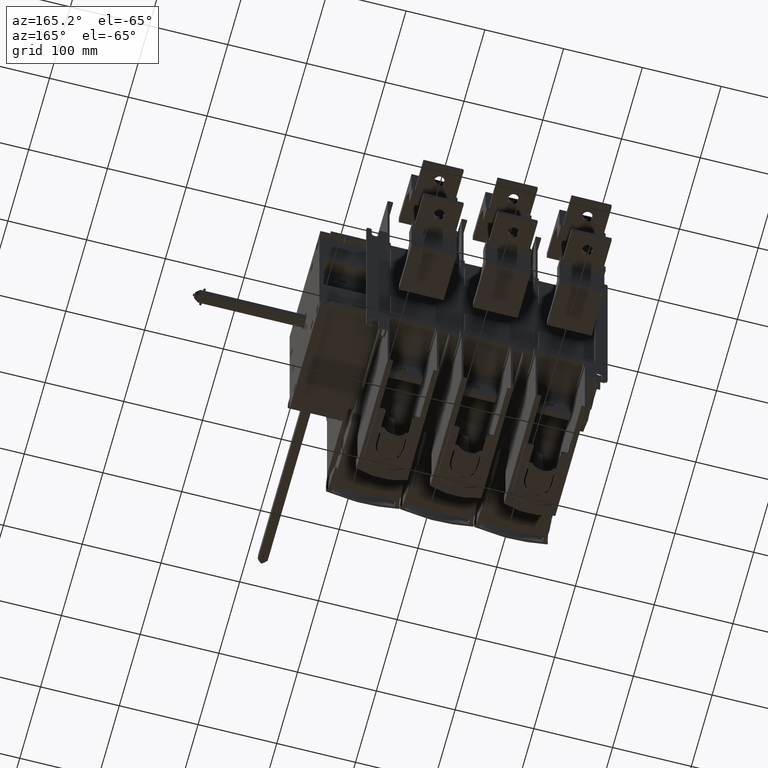
[diagram: clean part render]
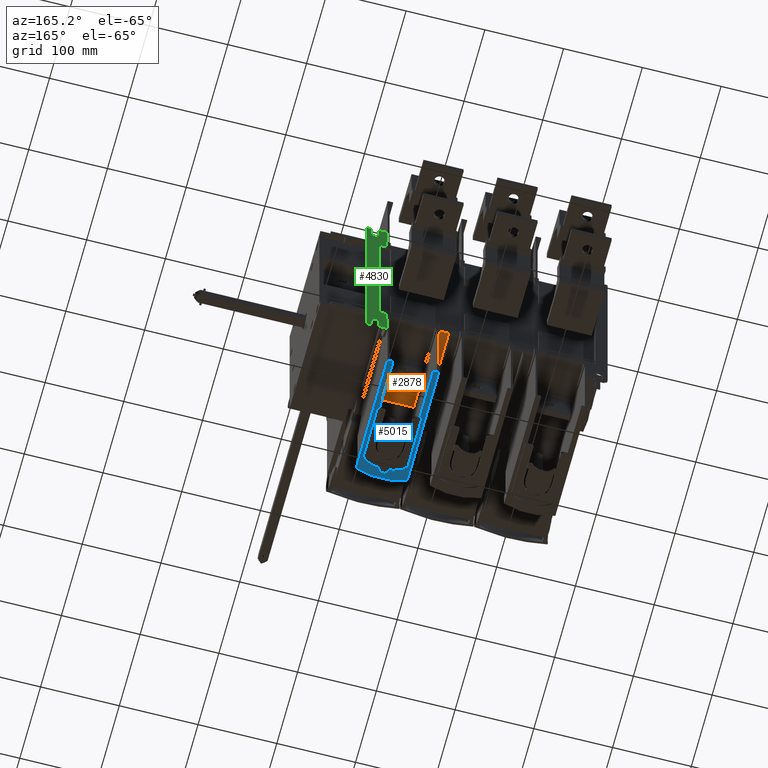
[diagram: same view with three faces highlighted in distinct colors, each labeled with its STEP entity id]
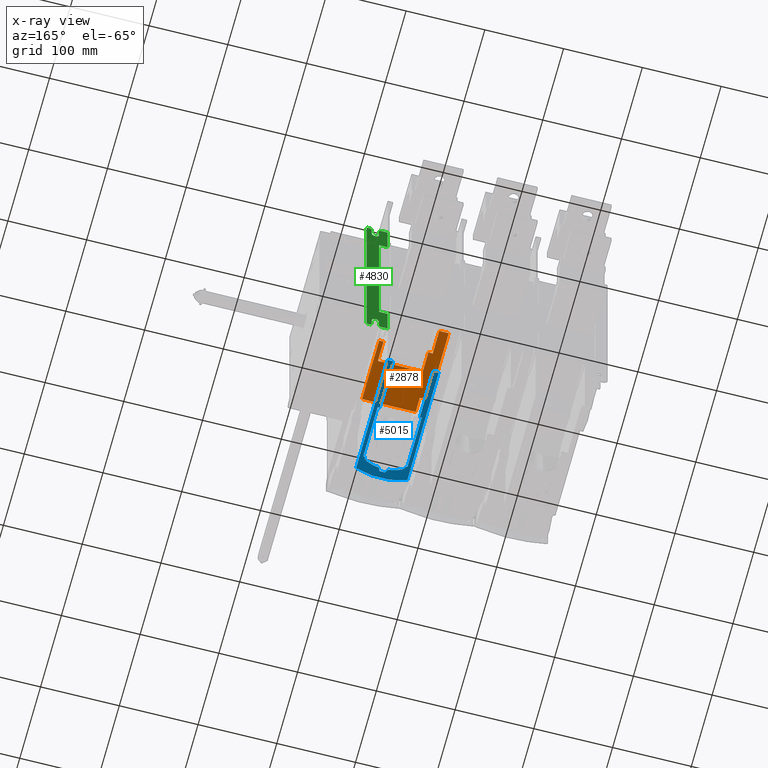
[diagram: x-ray of the same camera — body ghosted, the three highlighted faces saturated]
A machine part, auxiliary view with three faces highlighted in distinct colors.
The next image is the same camera in x-ray (body ghosted, the three faces saturated) — at least one of them is partly hidden behind the body in this view.
Their STEP definitions:

[orange] entity #2878 — the highlighted planar face has unit normal (0, 0, -1).
#2878=ADVANCED_FACE('',(#8355),#5737,.T.);
#5737=PLANE('',#59203);
#8355=FACE_OUTER_BOUND('',#11274,.T.);
#11274=EDGE_LOOP('',(#17446,#17447,#17448,#17449,#17450,#17451,#17452,#17453,
#17454,#17455,#17456,#17457));
#17446=ORIENTED_EDGE('',*,*,#37867,.F.);
#17447=ORIENTED_EDGE('',*,*,#37505,.T.);
#17448=ORIENTED_EDGE('',*,*,#37920,.F.);
#17449=ORIENTED_EDGE('',*,*,#37921,.F.);
#17450=ORIENTED_EDGE('',*,*,#37922,.T.);
#17451=ORIENTED_EDGE('',*,*,#37923,.F.);
#17452=ORIENTED_EDGE('',*,*,#37924,.F.);
#17453=ORIENTED_EDGE('',*,*,#37925,.T.);
#17454=ORIENTED_EDGE('',*,*,#37926,.T.);
#17455=ORIENTED_EDGE('',*,*,#37927,.F.);
#17456=ORIENTED_EDGE('',*,*,#37928,.T.);
#17457=ORIENTED_EDGE('',*,*,#37929,.T.);
#31540=VERTEX_POINT('',#85331);
#31547=VERTEX_POINT('',#85346);
#31549=VERTEX_POINT('',#85350);
#31844=VERTEX_POINT('',#86168);
#31845=VERTEX_POINT('',#86170);
#31846=VERTEX_POINT('',#86172);
#31847=VERTEX_POINT('',#86174);
#31848=VERTEX_POINT('',#86176);
#31849=VERTEX_POINT('',#86178);
#31850=VERTEX_POINT('',#86180);
#31851=VERTEX_POINT('',#86182);
#31852=VERTEX_POINT('',#86184);
#37505=EDGE_CURVE('',#31547,#31549,#45477,.T.);
#37867=EDGE_CURVE('',#31547,#31540,#45816,.T.);
#37920=EDGE_CURVE('',#31844,#31549,#45861,.T.);
#37921=EDGE_CURVE('',#31845,#31844,#45862,.T.);
#37922=EDGE_CURVE('',#31845,#31846,#45863,.T.);
#37923=EDGE_CURVE('',#31847,#31846,#45864,.T.);
#37924=EDGE_CURVE('',#31848,#31847,#45865,.T.);
#37925=EDGE_CURVE('',#31848,#31849,#45866,.T.);
#37926=EDGE_CURVE('',#31849,#31850,#45867,.T.);
#37927=EDGE_CURVE('',#31851,#31850,#45868,.T.);
#37928=EDGE_CURVE('',#31851,#31852,#45869,.T.);
#37929=EDGE_CURVE('',#31852,#31540,#45870,.T.);
#45477=LINE('',#85351,#52542);
#45816=LINE('',#86052,#52881);
#45861=LINE('',#86167,#52926);
#45862=LINE('',#86169,#52927);
#45863=LINE('',#86171,#52928);
#45864=LINE('',#86173,#52929);
#45865=LINE('',#86175,#52930);
#45866=LINE('',#86177,#52931);
#45867=LINE('',#86179,#52932);
#45868=LINE('',#86181,#52933);
#45869=LINE('',#86183,#52934);
#45870=LINE('',#86185,#52935);
#52542=VECTOR('',#64524,1.);
#52881=VECTOR('',#65055,1.);
#52926=VECTOR('',#65184,1.);
#52927=VECTOR('',#65185,1.);
#52928=VECTOR('',#65186,1.);
#52929=VECTOR('',#65187,1.);
#52930=VECTOR('',#65188,1.);
#52931=VECTOR('',#65189,1.);
#52932=VECTOR('',#65190,1.);
#52933=VECTOR('',#65191,1.);
#52934=VECTOR('',#65192,1.);
#52935=VECTOR('',#65193,1.);
#59203=AXIS2_PLACEMENT_3D('',#86186,#65194,#65195);
#64524=DIRECTION('',(1.78552635575544E-012,1.,0.));
#65055=DIRECTION('',(1.,1.81645629665548E-012,0.));
#65184=DIRECTION('',(1.,-1.81645629665548E-012,0.));
#65185=DIRECTION('',(-1.81645629665549E-012,-1.,0.));
#65186=DIRECTION('',(1.,-1.81645629665548E-012,0.));
#65187=DIRECTION('',(1.81645629665548E-012,1.,0.));
#65188=DIRECTION('',(-1.,1.78552635575543E-012,0.));
#65189=DIRECTION('',(-1.78552635575544E-012,-1.,0.));
#65190=DIRECTION('',(1.,-1.78552635575544E-012,0.));
#65191=DIRECTION('',(-1.81645629665548E-012,-1.,0.));
#65192=DIRECTION('',(1.,-1.81645629665549E-012,0.));
#65193=DIRECTION('',(-1.81645629665548E-012,-1.,0.));
#65194=DIRECTION('',(0.,0.,-1.));
#65195=DIRECTION('',(-1.,0.,0.));
#85331=CARTESIAN_POINT('',(-4099.39999999998,-387.499999999747,-96.150000000005));
#85346=CARTESIAN_POINT('',(-4167.39999999998,-387.49999999987,-96.150000000005));
#85350=CARTESIAN_POINT('',(-4167.39999999995,-367.69999999988,-96.150000000005));
#85351=CARTESIAN_POINT('',(-4167.39999999981,-291.999999999748,-96.150000000005));
#86052=CARTESIAN_POINT('',(-4118.05000000041,-387.499999999781,-96.150000000005));
#86167=CARTESIAN_POINT('',(-4180.39999999985,-367.699999999856,-96.1500000000052));
#86168=CARTESIAN_POINT('',(-4179.39999999985,-367.699999999858,-96.1500000000052));
#86169=CARTESIAN_POINT('',(-4179.39999999969,-276.999999999858,-96.1500000000052));
#86170=CARTESIAN_POINT('',(-4179.39999999968,-273.999999999858,-96.1500000000052));
#86171=CARTESIAN_POINT('',(-4179.39999999968,-273.999999999858,-96.1500000000052));
#86172=CARTESIAN_POINT('',(-4167.39999999977,-273.99999999988,-96.1500000000052));
#86173=CARTESIAN_POINT('',(-4167.3999999998,-337.284604705393,-96.1500000000032));
#86174=CARTESIAN_POINT('',(-4167.39999999983,-305.501723508272,-96.150000000005));
#86175=CARTESIAN_POINT('',(-4151.89999999983,-305.5017235083,-96.150000000005));
#86176=CARTESIAN_POINT('',(-4161.89999999983,-305.501723508281,-96.150000000005));
#86177=CARTESIAN_POINT('',(-4161.89999999983,-302.5720779384,-96.150000000005));
#86178=CARTESIAN_POINT('',(-4161.89999999988,-332.544518902366,-96.150000000005));
#86179=CARTESIAN_POINT('',(-4151.89999999988,-332.544518902384,-96.150000000005));
#86180=CARTESIAN_POINT('',(-4104.89999999989,-332.544518902468,-96.150000000005));
#86181=CARTESIAN_POINT('',(-4104.89999999983,-302.572077938501,-96.150000000005));
#86182=CARTESIAN_POINT('',(-4104.89999999983,-305.501723508384,-96.150000000005));
#86183=CARTESIAN_POINT('',(-4114.89999999983,-305.501723508366,-96.150000000005));
#86184=CARTESIAN_POINT('',(-4099.39999999983,-305.501723508394,-96.150000000005));
#86185=CARTESIAN_POINT('',(-4099.39999999993,-357.49999999987,-96.150000000005));
#86186=CARTESIAN_POINT('',(-4151.89999999981,-291.999999999775,-96.150000000005));

[blue] entity #5015 — the highlighted planar face has unit normal (0, -0, -1).
#358=(
BOUNDED_CURVE()
B_SPLINE_CURVE(3,(#103364,#103365,#103366,#103367),.UNSPECIFIED.,.F.,.F.)
B_SPLINE_CURVE_WITH_KNOTS((4,4),(0.,1.),.UNSPECIFIED.)
CURVE()
GEOMETRIC_REPRESENTATION_ITEM()
RATIONAL_B_SPLINE_CURVE((0.999999999999967,0.965573324706375,0.94469519449774,
0.937365609374061))
REPRESENTATION_ITEM('')
);
#359=(
BOUNDED_CURVE()
B_SPLINE_CURVE(3,(#103375,#103376,#103377,#103378),.UNSPECIFIED.,.F.,.F.)
B_SPLINE_CURVE_WITH_KNOTS((4,4),(0.,1.),.UNSPECIFIED.)
CURVE()
GEOMETRIC_REPRESENTATION_ITEM()
RATIONAL_B_SPLINE_CURVE((0.937365609374062,0.944695194497732,0.965573324706325,
0.999999999999839))
REPRESENTATION_ITEM('')
);
#609=B_SPLINE_CURVE_WITH_KNOTS('',3,(#103339,#103340,#103341,#103342,#103343,
#103344,#103345,#103346,#103347,#103348),.UNSPECIFIED.,.F.,.F.,(4,2,2,2,
4),(0.,0.25,0.5,0.75,1.),.UNSPECIFIED.);
#1819=CIRCLE('',#61874,49.5);
#1820=CIRCLE('',#61875,26.2);
#1821=CIRCLE('',#61876,49.5);
#5015=ADVANCED_FACE('',(#10404),#7594,.T.);
#7594=PLANE('',#61877);
#10404=FACE_OUTER_BOUND('',#13695,.T.);
#13695=EDGE_LOOP('',(#29014,#29015,#29016,#29017,#29018,#29019,#29020,#29021,
#29022,#29023,#29024,#29025,#29026,#29027,#29028,#29029,#29030,#29031,#29032,
#29033));
#29014=ORIENTED_EDGE('',*,*,#43593,.F.);
#29015=ORIENTED_EDGE('',*,*,#43552,.F.);
#29016=ORIENTED_EDGE('',*,*,#43594,.T.);
#29017=ORIENTED_EDGE('',*,*,#43595,.F.);
#29018=ORIENTED_EDGE('',*,*,#43596,.F.);
#29019=ORIENTED_EDGE('',*,*,#43597,.F.);
#29020=ORIENTED_EDGE('',*,*,#43598,.F.);
#29021=ORIENTED_EDGE('',*,*,#43599,.T.);
#29022=ORIENTED_EDGE('',*,*,#43600,.T.);
#29023=ORIENTED_EDGE('',*,*,#43601,.T.);
#29024=ORIENTED_EDGE('',*,*,#43602,.F.);
#29025=ORIENTED_EDGE('',*,*,#43603,.T.);
#29026=ORIENTED_EDGE('',*,*,#43604,.T.);
#29027=ORIENTED_EDGE('',*,*,#43605,.T.);
#29028=ORIENTED_EDGE('',*,*,#43606,.T.);
#29029=ORIENTED_EDGE('',*,*,#43607,.T.);
#29030=ORIENTED_EDGE('',*,*,#43608,.F.);
#29031=ORIENTED_EDGE('',*,*,#43609,.T.);
#29032=ORIENTED_EDGE('',*,*,#43610,.T.);
#29033=ORIENTED_EDGE('',*,*,#43611,.F.);
#35536=VERTEX_POINT('',#103250);
#35537=VERTEX_POINT('',#103252);
#35577=VERTEX_POINT('',#103336);
#35578=VERTEX_POINT('',#103338);
#35579=VERTEX_POINT('',#103349);
#35580=VERTEX_POINT('',#103351);
#35581=VERTEX_POINT('',#103353);
#35582=VERTEX_POINT('',#103355);
#35583=VERTEX_POINT('',#103357);
#35584=VERTEX_POINT('',#103359);
#35585=VERTEX_POINT('',#103361);
#35586=VERTEX_POINT('',#103363);
#35587=VERTEX_POINT('',#103368);
#35588=VERTEX_POINT('',#103370);
#35589=VERTEX_POINT('',#103372);
#35590=VERTEX_POINT('',#103374);
#35591=VERTEX_POINT('',#103379);
#35592=VERTEX_POINT('',#103381);
#35593=VERTEX_POINT('',#103383);
#35594=VERTEX_POINT('',#103385);
#43552=EDGE_CURVE('',#35536,#35537,#50833,.T.);
#43593=EDGE_CURVE('',#35537,#35577,#50866,.T.);
#43594=EDGE_CURVE('',#35536,#35578,#50867,.T.);
#43595=EDGE_CURVE('',#35579,#35578,#609,.T.);
#43596=EDGE_CURVE('',#35580,#35579,#50868,.T.);
#43597=EDGE_CURVE('',#35581,#35580,#50869,.T.);
#43598=EDGE_CURVE('',#35582,#35581,#50870,.T.);
#43599=EDGE_CURVE('',#35582,#35583,#50871,.T.);
#43600=EDGE_CURVE('',#35583,#35584,#50872,.T.);
#43601=EDGE_CURVE('',#35584,#35585,#1819,.T.);
#43602=EDGE_CURVE('',#35586,#35585,#50873,.T.);
#43603=EDGE_CURVE('',#35586,#35587,#358,.T.);
#43604=EDGE_CURVE('',#35587,#35588,#50874,.T.);
#43605=EDGE_CURVE('',#35588,#35589,#1820,.T.);
#43606=EDGE_CURVE('',#35589,#35590,#50875,.T.);
#43607=EDGE_CURVE('',#35590,#35591,#359,.T.);
#43608=EDGE_CURVE('',#35592,#35591,#50876,.T.);
#43609=EDGE_CURVE('',#35592,#35593,#1821,.T.);
#43610=EDGE_CURVE('',#35593,#35594,#50877,.T.);
#43611=EDGE_CURVE('',#35577,#35594,#50878,.T.);
#50833=LINE('',#103251,#57899);
#50866=LINE('',#103335,#57932);
#50867=LINE('',#103337,#57933);
#50868=LINE('',#103350,#57934);
#50869=LINE('',#103352,#57935);
#50870=LINE('',#103354,#57936);
#50871=LINE('',#103356,#57937);
#50872=LINE('',#103358,#57938);
#50873=LINE('',#103362,#57939);
#50874=LINE('',#103369,#57940);
#50875=LINE('',#103373,#57941);
#50876=LINE('',#103380,#57942);
#50877=LINE('',#103384,#57943);
#50878=LINE('',#103386,#57944);
#57899=VECTOR('',#75477,1.);
#57932=VECTOR('',#75532,1.);
#57933=VECTOR('',#75533,1.);
#57934=VECTOR('',#75534,1.);
#57935=VECTOR('',#75535,1.);
#57936=VECTOR('',#75536,1.);
#57937=VECTOR('',#75537,1.);
#57938=VECTOR('',#75538,1.);
#57939=VECTOR('',#75541,1.);
#57940=VECTOR('',#75542,1.);
#57941=VECTOR('',#75545,1.);
#57942=VECTOR('',#75546,1.);
#57943=VECTOR('',#75549,1.);
#57944=VECTOR('',#75550,1.);
#61874=AXIS2_PLACEMENT_3D('',#103360,#75539,#75540);
#61875=AXIS2_PLACEMENT_3D('',#103371,#75543,#75544);
#61876=AXIS2_PLACEMENT_3D('',#103382,#75547,#75548);
#61877=AXIS2_PLACEMENT_3D('',#103387,#75551,#75552);
#75477=DIRECTION('',(-1.,-1.77862905149979E-013,8.76931827261571E-045));
#75532=DIRECTION('',(1.22415030559352E-005,-0.999999999925073,4.9303806572619E-032));
#75533=DIRECTION('',(-1.22415045249832E-005,-0.999999999925073,4.9303806572619E-032));
#75534=DIRECTION('',(-1.2241504526315E-005,-0.999999999925073,4.9303806572619E-032));
#75535=DIRECTION('',(-1.,-1.77862905149979E-013,8.76931827261571E-045));
#75536=DIRECTION('',(1.22415045138586E-005,0.999999999925073,-4.9303806572619E-032));
#75537=DIRECTION('',(-1.,8.09171211665772E-013,-3.98952209070902E-044));
#75538=DIRECTION('',(-1.22415045264463E-005,-0.999999999925073,4.9303806572619E-032));
#75539=DIRECTION('',(0.,4.93038065763132E-032,1.));
#75540=DIRECTION('',(1.,0.,0.));
#75541=DIRECTION('',(1.22415045138586E-005,0.999999999925073,-4.9303806572619E-032));
#75542=DIRECTION('',(0.458883042446971,-0.88849668167901,4.38062685371981E-032));
#75543=DIRECTION('',(0.,4.93038065763132E-032,1.));
#75544=DIRECTION('',(1.00000000000001,0.,0.));
#75545=DIRECTION('',(0.458883042448269,0.88849668167834,-4.3806268537165E-032));
#75546=DIRECTION('',(1.22415030559352E-005,-0.999999999925073,4.9303806572619E-032));
#75547=DIRECTION('',(0.,4.93038065763132E-032,1.));
#75548=DIRECTION('',(1.,0.,0.));
#75549=DIRECTION('',(-1.22415030655906E-005,0.999999999925073,-4.9303806572619E-032));
#75550=DIRECTION('',(1.,-7.35610192422804E-013,3.62683826427785E-044));
#75551=DIRECTION('',(0.,-4.93038065763132E-032,-1.));
#75552=DIRECTION('',(1.,0.,0.));
#103250=CARTESIAN_POINT('',(-4100.99276902172,-270.999999999567,-223.150000000021));
#103251=CARTESIAN_POINT('',(-4163.99972543131,-270.999999999578,-223.150000000021));
#103252=CARTESIAN_POINT('',(-4107.99927754977,-270.999999999567,-223.150000000021));
#103335=CARTESIAN_POINT('',(-4107.99667487002,-483.611126159905,-223.150000000021));
#103336=CARTESIAN_POINT('',(-4107.99848185207,-335.999999999595,-223.150000000021));
#103337=CARTESIAN_POINT('',(-4100.99537171962,-483.612582989501,-223.150000000021));
#103338=CARTESIAN_POINT('',(-4100.99462304229,-422.45365209749,-223.150000000021));
#103339=CARTESIAN_POINT('',(-4165.99462304384,-422.457431294511,-223.150000000021));
#103340=CARTESIAN_POINT('',(-4160.80598610481,-424.280510544109,-223.150000000021));
#103341=CARTESIAN_POINT('',(-4155.48381893394,-425.663447913632,-223.150000000021));
#103342=CARTESIAN_POINT('',(-4144.56682643755,-427.530587803282,-223.150000000021));
#103343=CARTESIAN_POINT('',(-4138.99745877936,-428.000112816086,-223.150000000021));
#103344=CARTESIAN_POINT('',(-4127.99851870077,-427.999887141765,-223.150000000021));
#103345=CARTESIAN_POINT('',(-4122.51873370796,-427.540277299873,-223.150000000021));
#103346=CARTESIAN_POINT('',(-4111.59937004955,-425.682543860226,-223.150000000021));
#103347=CARTESIAN_POINT('',(-4106.18896492142,-424.279414443687,-223.150000000021));
#103348=CARTESIAN_POINT('',(-4100.99462304229,-422.45365209749,-223.150000000021));
#103349=CARTESIAN_POINT('',(-4165.99462304384,-422.457431294511,-223.150000000021));
#103350=CARTESIAN_POINT('',(-4165.99537166517,-483.611787291707,-223.150000000021));
#103351=CARTESIAN_POINT('',(-4165.99276897701,-270.999999999578,-223.150000000021));
#103352=CARTESIAN_POINT('',(-4163.99972543131,-270.999999999578,-223.150000000021));
#103353=CARTESIAN_POINT('',(-4159.00072244971,-270.999999999577,-223.150000000021));
#103354=CARTESIAN_POINT('',(-4159.00332513891,-483.611872884877,-223.150000000021));
#103355=CARTESIAN_POINT('',(-4159.0015181475,-335.999999999558,-223.150000000021));
#103356=CARTESIAN_POINT('',(-4157.52776362807,-335.999999999559,-223.150000000021));
#103357=CARTESIAN_POINT('',(-4161.5015181477,-335.999999999555,-223.150000000021));
#103358=CARTESIAN_POINT('',(-4161.50234139869,-403.250802448422,-223.150000000021));
#103359=CARTESIAN_POINT('',(-4161.50235446415,-404.318110495427,-223.150000000021));
#103360=CARTESIAN_POINT('',(-4133.49999999977,-363.499999999577,-223.150000000021));
#103361=CARTESIAN_POINT('',(-4159.00237413446,-405.924979828615,-223.150000000021));
#103362=CARTESIAN_POINT('',(-4159.00332513891,-483.611872884877,-223.150000000021));
#103363=CARTESIAN_POINT('',(-4159.0024025025,-408.242345340302,-223.150000000021));
#103364=CARTESIAN_POINT('',(-4159.0024025025,-408.242345340306,-223.150000000024));
#103365=CARTESIAN_POINT('',(-4152.98216435162,-411.673782278101,-223.150000000021));
#103366=CARTESIAN_POINT('',(-4146.33007892815,-413.876611526018,-223.15000000002));
#103367=CARTESIAN_POINT('',(-4139.29237125527,-414.673219902554,-223.150000000019));
#103368=CARTESIAN_POINT('',(-4139.29237125527,-414.673219902554,-223.150000000021));
#103369=CARTESIAN_POINT('',(-4137.56957381559,-418.008927842864,-223.150000000021));
#103370=CARTESIAN_POINT('',(-4137.08143957769,-418.954061156742,-223.150000000021));
#103371=CARTESIAN_POINT('',(-4133.49999999979,-392.999999999577,-223.150000000021));
#103372=CARTESIAN_POINT('',(-4129.918560422,-418.954061156756,-223.150000000021));
#103373=CARTESIAN_POINT('',(-4127.06181061646,-413.42277652034,-223.150000000021));
#103374=CARTESIAN_POINT('',(-4127.7076287444,-414.673219902568,-223.150000000021));
#103375=CARTESIAN_POINT('',(-4127.7076287444,-414.673219902568,-223.150000000019));
#103376=CARTESIAN_POINT('',(-4120.66992107153,-413.876611526052,-223.15000000002));
#103377=CARTESIAN_POINT('',(-4114.01783564806,-411.673782278155,-223.150000000021));
#103378=CARTESIAN_POINT('',(-4107.99759749718,-408.242345340382,-223.150000000024));
#103379=CARTESIAN_POINT('',(-4107.99759749718,-408.24234534038,-223.150000000021));
#103380=CARTESIAN_POINT('',(-4107.99667487002,-483.611126159905,-223.150000000021));
#103381=CARTESIAN_POINT('',(-4107.99762586522,-405.924979828655,-223.150000000021));
#103382=CARTESIAN_POINT('',(-4133.49999999984,-363.499999999577,-223.150000000021));
#103383=CARTESIAN_POINT('',(-4105.49764553552,-404.318110495465,-223.150000000021));
#103384=CARTESIAN_POINT('',(-4105.49927754995,-270.999969395861,-223.150000000021));
#103385=CARTESIAN_POINT('',(-4105.49848185188,-335.999999999596,-223.150000000021));
#103386=CARTESIAN_POINT('',(-4167.50306384865,-335.999999999551,-223.150000000021));
#103387=CARTESIAN_POINT('',(-4163.99972543128,-483.61181172142,-223.150000000021));

[green] entity #4830 — the highlighted planar face has unit normal (0, 1, 0).
#1764=CIRCLE('',#61607,2.);
#1765=CIRCLE('',#61612,4.5);
#1767=CIRCLE('',#61618,4.5);
#1770=CIRCLE('',#61625,2.);
#4830=ADVANCED_FACE('',(#10223),#7429,.T.);
#7429=PLANE('',#61637);
#10223=FACE_OUTER_BOUND('',#13488,.T.);
#13488=EDGE_LOOP('',(#27988,#27989,#27990,#27991,#27992,#27993,#27994,#27995,
#27996,#27997,#27998,#27999,#28000,#28001,#28002,#28003,#28004,#28005,#28006,
#28007,#28008,#28009));
#27988=ORIENTED_EDGE('',*,*,#43039,.F.);
#27989=ORIENTED_EDGE('',*,*,#43036,.F.);
#27990=ORIENTED_EDGE('',*,*,#43033,.T.);
#27991=ORIENTED_EDGE('',*,*,#43030,.T.);
#27992=ORIENTED_EDGE('',*,*,#43026,.T.);
#27993=ORIENTED_EDGE('',*,*,#43023,.F.);
#27994=ORIENTED_EDGE('',*,*,#43021,.F.);
#27995=ORIENTED_EDGE('',*,*,#43051,.T.);
#27996=ORIENTED_EDGE('',*,*,#43075,.T.);
#27997=ORIENTED_EDGE('',*,*,#43076,.T.);
#27998=ORIENTED_EDGE('',*,*,#43077,.F.);
#27999=ORIENTED_EDGE('',*,*,#43015,.F.);
#28000=ORIENTED_EDGE('',*,*,#43055,.T.);
#28001=ORIENTED_EDGE('',*,*,#43074,.F.);
#28002=ORIENTED_EDGE('',*,*,#43059,.F.);
#28003=ORIENTED_EDGE('',*,*,#43041,.F.);
#28004=ORIENTED_EDGE('',*,*,#43013,.T.);
#28005=ORIENTED_EDGE('',*,*,#43009,.T.);
#28006=ORIENTED_EDGE('',*,*,#43006,.F.);
#28007=ORIENTED_EDGE('',*,*,#43004,.F.);
#28008=ORIENTED_EDGE('',*,*,#43001,.F.);
#28009=ORIENTED_EDGE('',*,*,#42998,.T.);
#35167=VERTEX_POINT('',#102122);
#35168=VERTEX_POINT('',#102124);
#35170=VERTEX_POINT('',#102130);
#35172=VERTEX_POINT('',#102136);
#35173=VERTEX_POINT('',#102140);
#35175=VERTEX_POINT('',#102146);
#35178=VERTEX_POINT('',#102154);
#35179=VERTEX_POINT('',#102158);
#35180=VERTEX_POINT('',#102159);
#35185=VERTEX_POINT('',#102170);
#35186=VERTEX_POINT('',#102172);
#35187=VERTEX_POINT('',#102176);
#35189=VERTEX_POINT('',#102182);
#35192=VERTEX_POINT('',#102190);
#35194=VERTEX_POINT('',#102196);
#35196=VERTEX_POINT('',#102202);
#35198=VERTEX_POINT('',#102211);
#35204=VERTEX_POINT('',#102228);
#35207=VERTEX_POINT('',#102236);
#35208=VERTEX_POINT('',#102240);
#35221=VERTEX_POINT('',#102277);
#35222=VERTEX_POINT('',#102279);
#42998=EDGE_CURVE('',#35168,#35167,#1764,.T.);
#43001=EDGE_CURVE('',#35168,#35170,#50332,.T.);
#43004=EDGE_CURVE('',#35170,#35172,#50335,.T.);
#43006=EDGE_CURVE('',#35172,#35173,#50337,.T.);
#43009=EDGE_CURVE('',#35175,#35173,#1765,.T.);
#43013=EDGE_CURVE('',#35178,#35175,#50342,.T.);
#43015=EDGE_CURVE('',#35179,#35180,#50344,.T.);
#43021=EDGE_CURVE('',#35185,#35186,#50350,.T.);
#43023=EDGE_CURVE('',#35186,#35187,#1767,.T.);
#43026=EDGE_CURVE('',#35189,#35187,#50353,.T.);
#43030=EDGE_CURVE('',#35192,#35189,#50357,.T.);
#43033=EDGE_CURVE('',#35194,#35192,#50360,.T.);
#43036=EDGE_CURVE('',#35194,#35196,#1770,.T.);
#43039=EDGE_CURVE('',#35196,#35167,#50364,.T.);
#43041=EDGE_CURVE('',#35178,#35198,#50366,.T.);
#43051=EDGE_CURVE('',#35185,#35204,#50376,.T.);
#43055=EDGE_CURVE('',#35179,#35207,#50380,.T.);
#43059=EDGE_CURVE('',#35198,#35208,#50384,.T.);
#43074=EDGE_CURVE('',#35208,#35207,#50399,.T.);
#43075=EDGE_CURVE('',#35204,#35221,#50400,.T.);
#43076=EDGE_CURVE('',#35221,#35222,#50401,.T.);
#43077=EDGE_CURVE('',#35180,#35222,#50402,.T.);
#50332=LINE('',#102129,#57398);
#50335=LINE('',#102135,#57401);
#50337=LINE('',#102139,#57403);
#50342=LINE('',#102153,#57408);
#50344=LINE('',#102157,#57410);
#50350=LINE('',#102171,#57416);
#50353=LINE('',#102181,#57419);
#50357=LINE('',#102189,#57423);
#50360=LINE('',#102195,#57426);
#50364=LINE('',#102206,#57430);
#50366=LINE('',#102210,#57432);
#50376=LINE('',#102229,#57442);
#50380=LINE('',#102237,#57446);
#50384=LINE('',#102245,#57450);
#50399=LINE('',#102274,#57465);
#50400=LINE('',#102276,#57466);
#50401=LINE('',#102278,#57467);
#50402=LINE('',#102280,#57468);
#57398=VECTOR('',#74468,1.);
#57401=VECTOR('',#74473,1.);
#57403=VECTOR('',#74477,1.);
#57408=VECTOR('',#74490,1.);
#57410=VECTOR('',#74494,1.);
#57416=VECTOR('',#74502,1.);
#57419=VECTOR('',#74513,1.);
#57423=VECTOR('',#74519,1.);
#57426=VECTOR('',#74524,1.);
#57430=VECTOR('',#74536,1.);
#57432=VECTOR('',#74540,1.);
#57442=VECTOR('',#74554,1.);
#57446=VECTOR('',#74560,1.);
#57450=VECTOR('',#74566,1.);
#57465=VECTOR('',#74589,1.);
#57466=VECTOR('',#74592,1.);
#57467=VECTOR('',#74593,1.);
#57468=VECTOR('',#74594,1.);
#61607=AXIS2_PLACEMENT_3D('',#102123,#74462,#74463);
#61612=AXIS2_PLACEMENT_3D('',#102145,#74482,#74483);
#61618=AXIS2_PLACEMENT_3D('',#102175,#74506,#74507);
#61625=AXIS2_PLACEMENT_3D('',#102201,#74530,#74531);
#61637=AXIS2_PLACEMENT_3D('',#102281,#74595,#74596);
#74462=DIRECTION('',(0.,1.,0.));
#74463=DIRECTION('',(0.,0.,-1.));
#74468=DIRECTION('',(-1.,0.,0.));
#74473=DIRECTION('',(-0.707106781186548,0.,-0.707106781186548));
#74477=DIRECTION('',(-3.51436002694883E-015,0.,-1.));
#74482=DIRECTION('',(0.,-1.,0.));
#74483=DIRECTION('',(0.,0.,-1.));
#74490=DIRECTION('',(-3.51436002694883E-015,0.,-1.));
#74494=DIRECTION('',(0.,0.,-1.));
#74502=DIRECTION('',(-3.51436002694883E-015,0.,1.));
#74506=DIRECTION('',(0.,1.,0.));
#74507=DIRECTION('',(0.,0.,1.));
#74513=DIRECTION('',(-3.51436002694883E-015,0.,1.));
#74519=DIRECTION('',(-0.707106781186548,0.,0.707106781186548));
#74524=DIRECTION('',(-1.,0.,0.));
#74530=DIRECTION('',(0.,-1.,0.));
#74531=DIRECTION('',(0.,0.,1.));
#74536=DIRECTION('',(0.,0.,1.));
#74540=DIRECTION('',(-0.707106781186548,0.,0.707106781186548));
#74554=DIRECTION('',(-0.707106781186548,0.,-0.707106781186548));
#74560=DIRECTION('',(-1.,0.,0.));
#74566=DIRECTION('',(-1.,0.,0.));
#74589=DIRECTION('',(0.,0.,-1.));
#74592=DIRECTION('',(-1.,0.,0.));
#74593=DIRECTION('',(0.,0.,1.));
#74594=DIRECTION('',(-1.,0.,0.));
#74595=DIRECTION('',(0.,1.,0.));
#74596=DIRECTION('',(0.,0.,-1.));
#102122=CARTESIAN_POINT('',(-4074.39999999988,-271.000306627267,145.099999999996));
#102123=CARTESIAN_POINT('',(-4076.39999999988,-271.000306627267,145.099999999996));
#102124=CARTESIAN_POINT('',(-4076.39999999988,-271.000306627267,147.099999999996));
#102129=CARTESIAN_POINT('',(-4064.39999999988,-271.000306627267,147.099999999996));
#102130=CARTESIAN_POINT('',(-4078.89999999988,-271.000306627267,147.099999999996));
#102135=CARTESIAN_POINT('',(-4078.89999999988,-271.000306627267,147.099999999996));
#102136=CARTESIAN_POINT('',(-4080.89999999988,-271.000306627267,145.099999999996));
#102139=CARTESIAN_POINT('',(-4080.89999999988,-271.000306627267,134.599999999996));
#102140=CARTESIAN_POINT('',(-4080.89999999988,-271.000306627267,132.599999999996));
#102145=CARTESIAN_POINT('',(-4085.39999999988,-271.000306627267,132.599999999996));
#102146=CARTESIAN_POINT('',(-4089.89999999988,-271.000306627267,132.599999999996));
#102153=CARTESIAN_POINT('',(-4089.89999999988,-271.000306627267,112.599999999996));
#102154=CARTESIAN_POINT('',(-4089.89999999988,-271.000306627267,145.099999999996));
#102157=CARTESIAN_POINT('',(-4090.19999999988,-271.000306627267,103.846319416221));
#102158=CARTESIAN_POINT('',(-4090.19999999988,-271.000306627267,104.35368058377));
#102159=CARTESIAN_POINT('',(-4090.19999999988,-271.000306627267,-89.15368058378));
#102170=CARTESIAN_POINT('',(-4089.89999999988,-271.000306627267,-129.900000000004));
#102171=CARTESIAN_POINT('',(-4089.89999999988,-271.000306627267,-97.4000000000039));
#102172=CARTESIAN_POINT('',(-4089.89999999988,-271.000306627267,-117.400000000005));
#102175=CARTESIAN_POINT('',(-4085.39999999988,-271.000306627267,-117.400000000005));
#102176=CARTESIAN_POINT('',(-4080.89999999988,-271.000306627267,-117.400000000005));
#102181=CARTESIAN_POINT('',(-4080.89999999988,-271.000306627267,-119.400000000005));
#102182=CARTESIAN_POINT('',(-4080.89999999988,-271.000306627267,-129.900000000004));
#102189=CARTESIAN_POINT('',(-4078.89999999988,-271.000306627267,-131.900000000004));
#102190=CARTESIAN_POINT('',(-4078.89999999988,-271.000306627267,-131.900000000004));
#102195=CARTESIAN_POINT('',(-4064.39999999988,-271.000306627267,-131.900000000004));
#102196=CARTESIAN_POINT('',(-4076.39999999988,-271.000306627267,-131.900000000004));
#102201=CARTESIAN_POINT('',(-4076.39999999988,-271.000306627267,-129.900000000004));
#102202=CARTESIAN_POINT('',(-4074.39999999988,-271.000306627267,-129.900000000004));
#102206=CARTESIAN_POINT('',(-4074.39999999988,-271.000306627267,-97.400000000003));
#102210=CARTESIAN_POINT('',(-4089.89999999988,-271.000306627267,145.099999999996));
#102211=CARTESIAN_POINT('',(-4091.89999999988,-271.000306627267,147.099999999996));
#102228=CARTESIAN_POINT('',(-4091.89999999988,-271.000306627267,-131.900000000004));
#102229=CARTESIAN_POINT('',(-4089.89999999988,-271.000306627267,-129.900000000004));
#102236=CARTESIAN_POINT('',(-4100.89999999988,-271.000306627267,104.35368058377));
#102237=CARTESIAN_POINT('',(-4095.39999999988,-271.000306627267,104.35368058377));
#102240=CARTESIAN_POINT('',(-4100.89999999988,-271.000306627267,147.099999999996));
#102245=CARTESIAN_POINT('',(-4064.39999999988,-271.000306627267,147.099999999996));
#102274=CARTESIAN_POINT('',(-4100.89999999988,-271.000306627267,-97.400000000003));
#102276=CARTESIAN_POINT('',(-4064.39999999988,-271.000306627267,-131.900000000004));
#102277=CARTESIAN_POINT('',(-4100.89999999988,-271.000306627267,-131.900000000004));
#102278=CARTESIAN_POINT('',(-4100.89999999988,-271.000306627267,-98.588027358097));
#102279=CARTESIAN_POINT('',(-4100.89999999988,-271.000306627267,-89.15368058378));
#102280=CARTESIAN_POINT('',(-4074.39999999988,-271.000306627267,-89.15368058378));
#102281=CARTESIAN_POINT('',(-4095.39999999988,-271.000306627267,-97.400000000003));